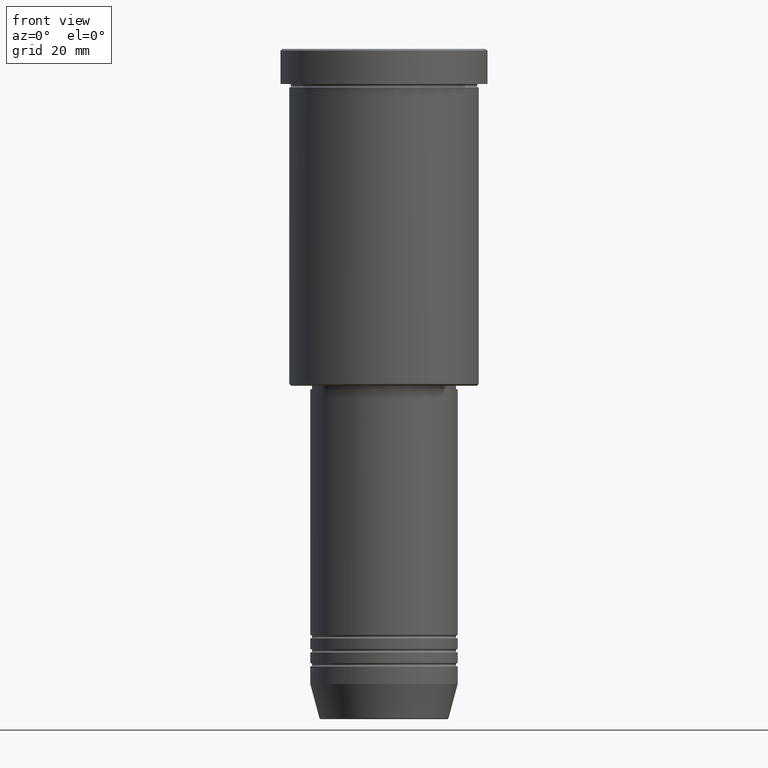
[diagram: clean part render]
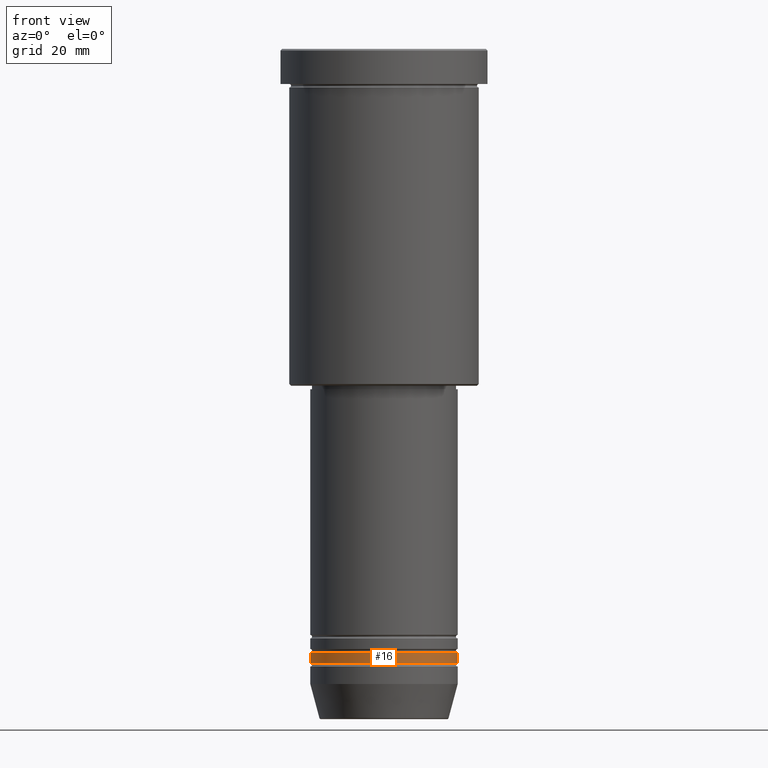
[diagram: same view with one face highlighted and labeled with its STEP entity id]
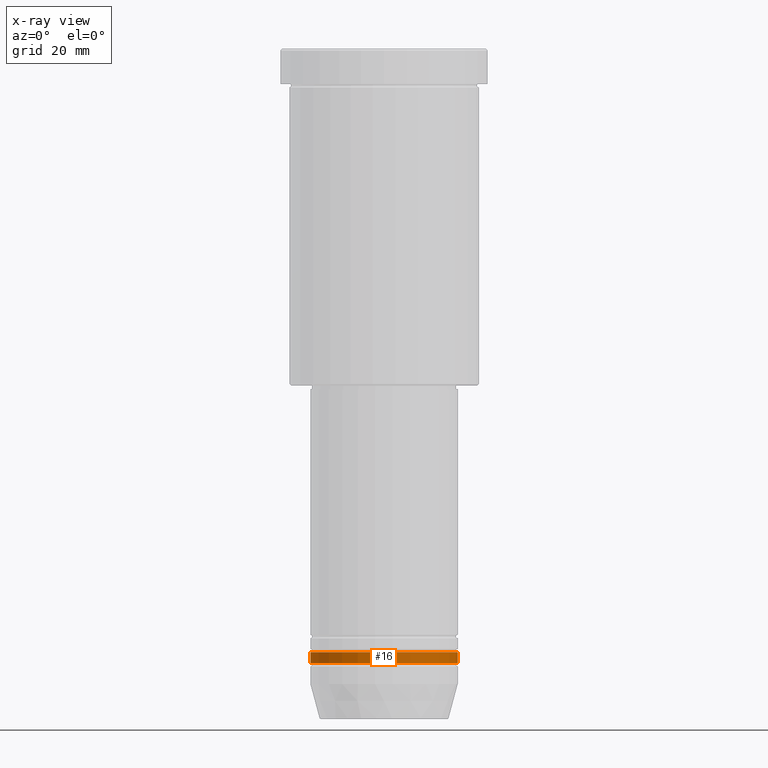
[diagram: x-ray of the same camera — body ghosted, the highlighted face saturated]
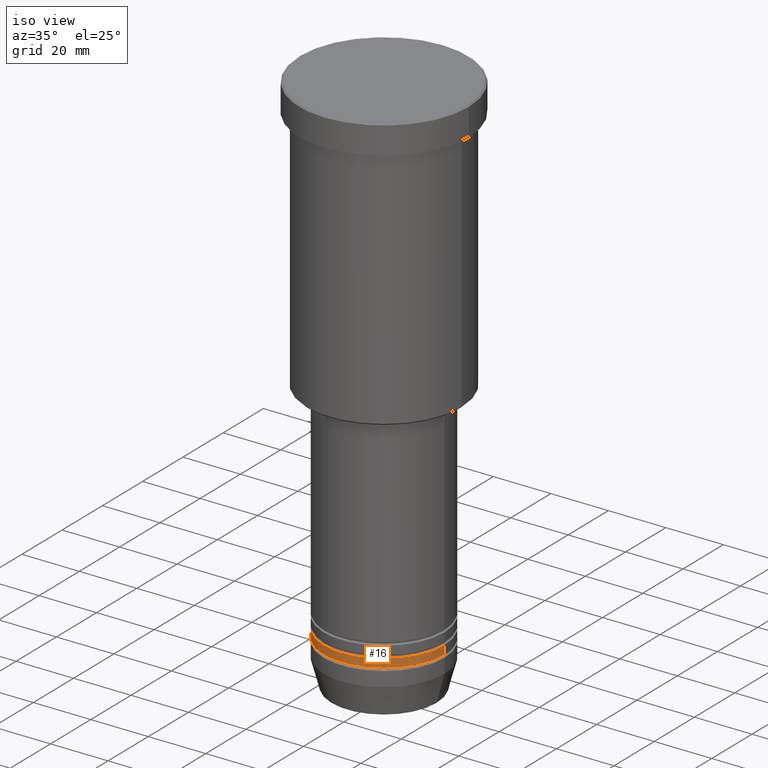
[diagram: same view with one face highlighted and labeled with its STEP entity id]
A machine part, front view. The second image highlights one B-rep face of the part: STEP entity #16.
The next image is the same camera in x-ray: the body ghosted, the highlighted face saturated — about 0% of this face is hidden behind the body in this view.
A second angle (iso view) of the same face is appended — the face is thin or edge-on in the first view.
In plain terms, the highlighted cylindrical surface (partial cylindrical patch) has radius 21 mm, axis along (-0, -0, 1).
Its self-contained STEP definition (entity closure, byte-faithful):
#16 = ADVANCED_FACE ( 'NONE', ( #243 ), #255, .T. ) ;
#65 = DIRECTION ( 'NONE',  ( -0.000000000000000000, -0.000000000000000000, 1.000000000000000000 ) ) ;
#86 = ORIENTED_EDGE ( 'NONE', *, *, #892, .F. ) ;
#92 = LINE ( 'NONE', #375, #211 ) ;
#116 = CARTESIAN_POINT ( 'NONE',  ( 0.000000000000000000, 0.000000000000000000, -171.9999999999999147 ) ) ;
#157 = CARTESIAN_POINT ( 'NONE',  ( 0.000000000000000000, 0.000000000000000000, -174.9999999999998863 ) ) ;
#179 = EDGE_CURVE ( 'NONE', #751, #944, #198, .T. ) ;
#198 = LINE ( 'NONE', #390, #981 ) ;
#201 = CARTESIAN_POINT ( 'NONE',  ( -21.00000000000000000, 2.571758278209441661E-15, -174.9999999999998863 ) ) ;
#211 = VECTOR ( 'NONE', #244, 1000.000000000000000 ) ;
#243 = FACE_OUTER_BOUND ( 'NONE', #848, .T. ) ;
#244 = DIRECTION ( 'NONE',  ( -0.000000000000000000, -0.000000000000000000, 1.000000000000000000 ) ) ;
#255 = CYLINDRICAL_SURFACE ( 'NONE', #691, 21.00000000000000000 ) ;
#294 = DIRECTION ( 'NONE',  ( 1.000000000000000000, 0.000000000000000000, 0.000000000000000000 ) ) ;
#327 = AXIS2_PLACEMENT_3D ( 'NONE', #157, #1143, #882 ) ;
#375 = CARTESIAN_POINT ( 'NONE',  ( -21.00000000000000000, 2.571758278209441661E-15, 0.000000000000000000 ) ) ;
#390 = CARTESIAN_POINT ( 'NONE',  ( 21.00000000000000000, 0.000000000000000000, 0.000000000000000000 ) ) ;
#396 = ORIENTED_EDGE ( 'NONE', *, *, #179, .T. ) ;
#412 = CARTESIAN_POINT ( 'NONE',  ( 21.00000000000000000, 0.000000000000000000, -174.9999999999998863 ) ) ;
#452 = EDGE_CURVE ( 'NONE', #857, #751, #906, .T. ) ;
#549 = DIRECTION ( 'NONE',  ( -0.000000000000000000, -0.000000000000000000, 1.000000000000000000 ) ) ;
#650 = DIRECTION ( 'NONE',  ( -0.000000000000000000, -0.000000000000000000, 1.000000000000000000 ) ) ;
#691 = AXIS2_PLACEMENT_3D ( 'NONE', #895, #65, #1149 ) ;
#695 = AXIS2_PLACEMENT_3D ( 'NONE', #116, #549, #294 ) ;
#748 = CIRCLE ( 'NONE', #695, 21.00000000000000000 ) ;
#751 = VERTEX_POINT ( 'NONE', #412 ) ;
#771 = CARTESIAN_POINT ( 'NONE',  ( -21.00000000000000000, 2.571758278209441661E-15, -171.9999999999999147 ) ) ;
#848 = EDGE_LOOP ( 'NONE', ( #959, #1165, #396, #86 ) ) ;
#857 = VERTEX_POINT ( 'NONE', #201 ) ;
#882 = DIRECTION ( 'NONE',  ( 1.000000000000000000, 0.000000000000000000, 0.000000000000000000 ) ) ;
#892 = EDGE_CURVE ( 'NONE', #1171, #944, #748, .T. ) ;
#895 = CARTESIAN_POINT ( 'NONE',  ( 0.000000000000000000, 0.000000000000000000, 0.000000000000000000 ) ) ;
#906 = CIRCLE ( 'NONE', #327, 21.00000000000000000 ) ;
#944 = VERTEX_POINT ( 'NONE', #1009 ) ;
#959 = ORIENTED_EDGE ( 'NONE', *, *, #1104, .F. ) ;
#981 = VECTOR ( 'NONE', #650, 1000.000000000000000 ) ;
#1009 = CARTESIAN_POINT ( 'NONE',  ( 21.00000000000000000, 0.000000000000000000, -171.9999999999999147 ) ) ;
#1104 = EDGE_CURVE ( 'NONE', #857, #1171, #92, .T. ) ;
#1143 = DIRECTION ( 'NONE',  ( -0.000000000000000000, -0.000000000000000000, 1.000000000000000000 ) ) ;
#1149 = DIRECTION ( 'NONE',  ( 1.000000000000000000, 0.000000000000000000, 0.000000000000000000 ) ) ;
#1165 = ORIENTED_EDGE ( 'NONE', *, *, #452, .T. ) ;
#1171 = VERTEX_POINT ( 'NONE', #771 ) ;